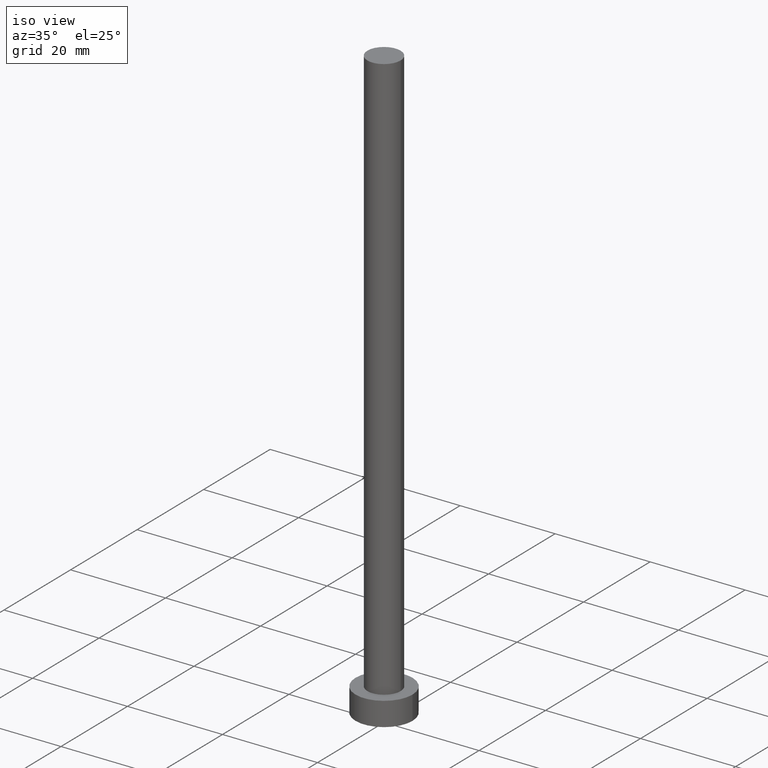
[diagram: clean part render]
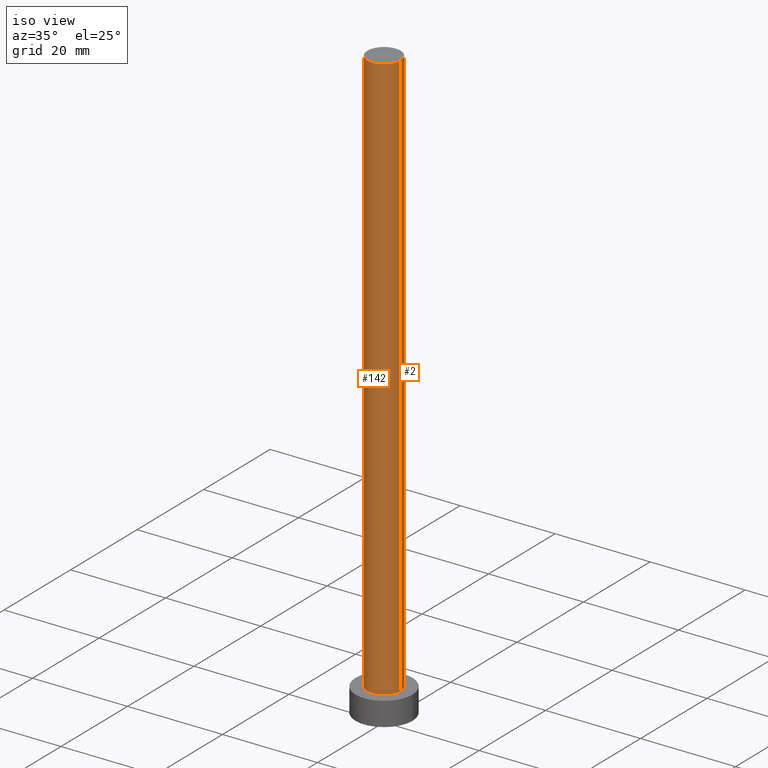
[diagram: same view with one multi-face feature highlighted, each face labeled with its STEP entity id]
A machine part, iso view. The highlighted faces form ONE feature: a constant-radius fillet chain: 2 tangent blend faces with common blend radius 3.5 mm. The faces share edges in the B-rep.
Their STEP definitions:
[1] entity #142 (Cylinder):
#13 = DIRECTION ( 'NONE',  ( 0.000000000000000000, 0.000000000000000000, 1.000000000000000000 ) ) ;
#18 = EDGE_CURVE ( 'NONE', #169, #32, #149, .T. ) ;
#32 = VERTEX_POINT ( 'NONE', #226 ) ;
#34 = VECTOR ( 'NONE', #154, 1000.000000000000000 ) ;
#39 = EDGE_CURVE ( 'NONE', #32, #214, #194, .T. ) ;
#51 = DIRECTION ( 'NONE',  ( 1.000000000000000000, 0.000000000000000000, 0.000000000000000000 ) ) ;
#63 = AXIS2_PLACEMENT_3D ( 'NONE', #188, #13, #94 ) ;
#70 = DIRECTION ( 'NONE',  ( 0.000000000000000000, 0.000000000000000000, 1.000000000000000000 ) ) ;
#75 = EDGE_LOOP ( 'NONE', ( #179, #200, #166, #126 ) ) ;
#79 = DIRECTION ( 'NONE',  ( -1.000000000000000000, 0.000000000000000000, 0.000000000000000000 ) ) ;
#83 = CARTESIAN_POINT ( 'NONE',  ( 3.500000000000000000, 4.286263797015736595E-16, 125.0000000000000000 ) ) ;
#85 = VECTOR ( 'NONE', #209, 1000.000000000000000 ) ;
#93 = EDGE_CURVE ( 'NONE', #169, #108, #128, .T. ) ;
#94 = DIRECTION ( 'NONE',  ( 1.000000000000000000, 0.000000000000000000, 0.000000000000000000 ) ) ;
#100 = CARTESIAN_POINT ( 'NONE',  ( 3.500000000000000000, 4.286263797015736595E-16, 125.0000000000000000 ) ) ;
#108 = VERTEX_POINT ( 'NONE', #83 ) ;
#109 = EDGE_CURVE ( 'NONE', #108, #214, #120, .T. ) ;
#110 = CARTESIAN_POINT ( 'NONE',  ( 0.000000000000000000, 0.000000000000000000, 5.000000000000000000 ) ) ;
#120 = LINE ( 'NONE', #100, #85 ) ;
#121 = AXIS2_PLACEMENT_3D ( 'NONE', #175, #134, #79 ) ;
#126 = ORIENTED_EDGE ( 'NONE', *, *, #39, .T. ) ;
#128 = CIRCLE ( 'NONE', #63, 3.500000000000000000 ) ;
#134 = DIRECTION ( 'NONE',  ( -0.000000000000000000, -0.000000000000000000, -1.000000000000000000 ) ) ;
#136 = CYLINDRICAL_SURFACE ( 'NONE', #121, 3.500000000000000000 ) ;
#142 = ADVANCED_FACE ( 'NONE', ( #156 ), #136, .T. ) ;
#148 = CARTESIAN_POINT ( 'NONE',  ( -3.500000000000000000, 0.000000000000000000, 125.0000000000000000 ) ) ;
#149 = LINE ( 'NONE', #148, #34 ) ;
#154 = DIRECTION ( 'NONE',  ( -0.000000000000000000, -0.000000000000000000, -1.000000000000000000 ) ) ;
#156 = FACE_OUTER_BOUND ( 'NONE', #75, .T. ) ;
#166 = ORIENTED_EDGE ( 'NONE', *, *, #18, .T. ) ;
#169 = VERTEX_POINT ( 'NONE', #171 ) ;
#171 = CARTESIAN_POINT ( 'NONE',  ( -3.500000000000000000, 0.000000000000000000, 125.0000000000000000 ) ) ;
#175 = CARTESIAN_POINT ( 'NONE',  ( 0.000000000000000000, 0.000000000000000000, 125.0000000000000000 ) ) ;
#176 = AXIS2_PLACEMENT_3D ( 'NONE', #110, #70, #51 ) ;
#179 = ORIENTED_EDGE ( 'NONE', *, *, #109, .F. ) ;
#188 = CARTESIAN_POINT ( 'NONE',  ( 0.000000000000000000, 0.000000000000000000, 125.0000000000000000 ) ) ;
#192 = CARTESIAN_POINT ( 'NONE',  ( 3.500000000000000000, 4.286263797015736595E-16, 5.000000000000000000 ) ) ;
#194 = CIRCLE ( 'NONE', #176, 3.500000000000000000 ) ;
#200 = ORIENTED_EDGE ( 'NONE', *, *, #93, .F. ) ;
#209 = DIRECTION ( 'NONE',  ( -0.000000000000000000, -0.000000000000000000, -1.000000000000000000 ) ) ;
#214 = VERTEX_POINT ( 'NONE', #192 ) ;
#226 = CARTESIAN_POINT ( 'NONE',  ( -3.500000000000000000, 0.000000000000000000, 5.000000000000000000 ) ) ;
[2] entity #2 (Cylinder):
#2 = ADVANCED_FACE ( 'NONE', ( #132 ), #53, .T. ) ;
#14 = CARTESIAN_POINT ( 'NONE',  ( 0.000000000000000000, 0.000000000000000000, 5.000000000000000000 ) ) ;
#18 = EDGE_CURVE ( 'NONE', #169, #32, #149, .T. ) ;
#25 = ORIENTED_EDGE ( 'NONE', *, *, #109, .T. ) ;
#27 = AXIS2_PLACEMENT_3D ( 'NONE', #240, #133, #71 ) ;
#32 = VERTEX_POINT ( 'NONE', #226 ) ;
#34 = VECTOR ( 'NONE', #154, 1000.000000000000000 ) ;
#53 = CYLINDRICAL_SURFACE ( 'NONE', #168, 3.500000000000000000 ) ;
#56 = EDGE_LOOP ( 'NONE', ( #90, #25, #242, #218 ) ) ;
#65 = CIRCLE ( 'NONE', #159, 3.500000000000000000 ) ;
#71 = DIRECTION ( 'NONE',  ( 1.000000000000000000, 0.000000000000000000, 0.000000000000000000 ) ) ;
#73 = DIRECTION ( 'NONE',  ( -1.000000000000000000, 0.000000000000000000, 0.000000000000000000 ) ) ;
#78 = CIRCLE ( 'NONE', #27, 3.500000000000000000 ) ;
#80 = EDGE_CURVE ( 'NONE', #108, #169, #78, .T. ) ;
#83 = CARTESIAN_POINT ( 'NONE',  ( 3.500000000000000000, 4.286263797015736595E-16, 125.0000000000000000 ) ) ;
#85 = VECTOR ( 'NONE', #209, 1000.000000000000000 ) ;
#90 = ORIENTED_EDGE ( 'NONE', *, *, #80, .F. ) ;
#97 = DIRECTION ( 'NONE',  ( 0.000000000000000000, 0.000000000000000000, 1.000000000000000000 ) ) ;
#100 = CARTESIAN_POINT ( 'NONE',  ( 3.500000000000000000, 4.286263797015736595E-16, 125.0000000000000000 ) ) ;
#108 = VERTEX_POINT ( 'NONE', #83 ) ;
#109 = EDGE_CURVE ( 'NONE', #108, #214, #120, .T. ) ;
#120 = LINE ( 'NONE', #100, #85 ) ;
#132 = FACE_OUTER_BOUND ( 'NONE', #56, .T. ) ;
#133 = DIRECTION ( 'NONE',  ( 0.000000000000000000, 0.000000000000000000, 1.000000000000000000 ) ) ;
#139 = DIRECTION ( 'NONE',  ( 1.000000000000000000, 0.000000000000000000, 0.000000000000000000 ) ) ;
#148 = CARTESIAN_POINT ( 'NONE',  ( -3.500000000000000000, 0.000000000000000000, 125.0000000000000000 ) ) ;
#149 = LINE ( 'NONE', #148, #34 ) ;
#154 = DIRECTION ( 'NONE',  ( -0.000000000000000000, -0.000000000000000000, -1.000000000000000000 ) ) ;
#159 = AXIS2_PLACEMENT_3D ( 'NONE', #14, #97, #139 ) ;
#164 = DIRECTION ( 'NONE',  ( -0.000000000000000000, -0.000000000000000000, -1.000000000000000000 ) ) ;
#168 = AXIS2_PLACEMENT_3D ( 'NONE', #244, #164, #73 ) ;
#169 = VERTEX_POINT ( 'NONE', #171 ) ;
#171 = CARTESIAN_POINT ( 'NONE',  ( -3.500000000000000000, 0.000000000000000000, 125.0000000000000000 ) ) ;
#192 = CARTESIAN_POINT ( 'NONE',  ( 3.500000000000000000, 4.286263797015736595E-16, 5.000000000000000000 ) ) ;
#209 = DIRECTION ( 'NONE',  ( -0.000000000000000000, -0.000000000000000000, -1.000000000000000000 ) ) ;
#211 = EDGE_CURVE ( 'NONE', #214, #32, #65, .T. ) ;
#214 = VERTEX_POINT ( 'NONE', #192 ) ;
#218 = ORIENTED_EDGE ( 'NONE', *, *, #18, .F. ) ;
#226 = CARTESIAN_POINT ( 'NONE',  ( -3.500000000000000000, 0.000000000000000000, 5.000000000000000000 ) ) ;
#240 = CARTESIAN_POINT ( 'NONE',  ( 0.000000000000000000, 0.000000000000000000, 125.0000000000000000 ) ) ;
#242 = ORIENTED_EDGE ( 'NONE', *, *, #211, .T. ) ;
#244 = CARTESIAN_POINT ( 'NONE',  ( 0.000000000000000000, 0.000000000000000000, 125.0000000000000000 ) ) ;